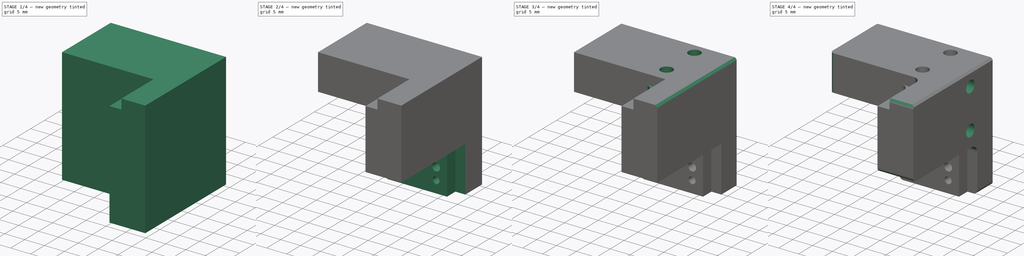
[diagram: build sequence overview — one tinted view per stage of 4, left to right]
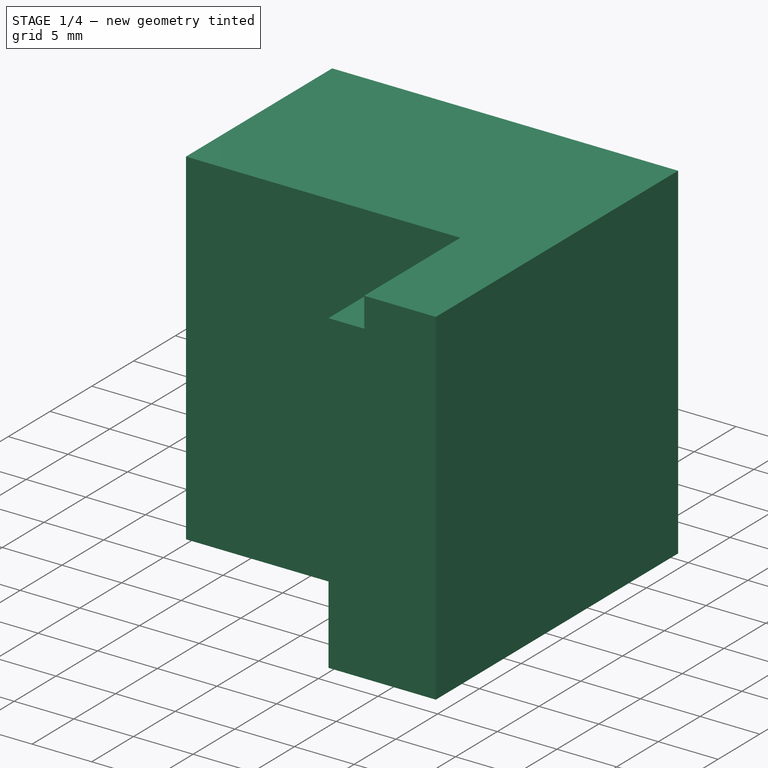
[diagram: stage 1 of 4 — iso view after this stage's code; geometry added in this stage tinted green]
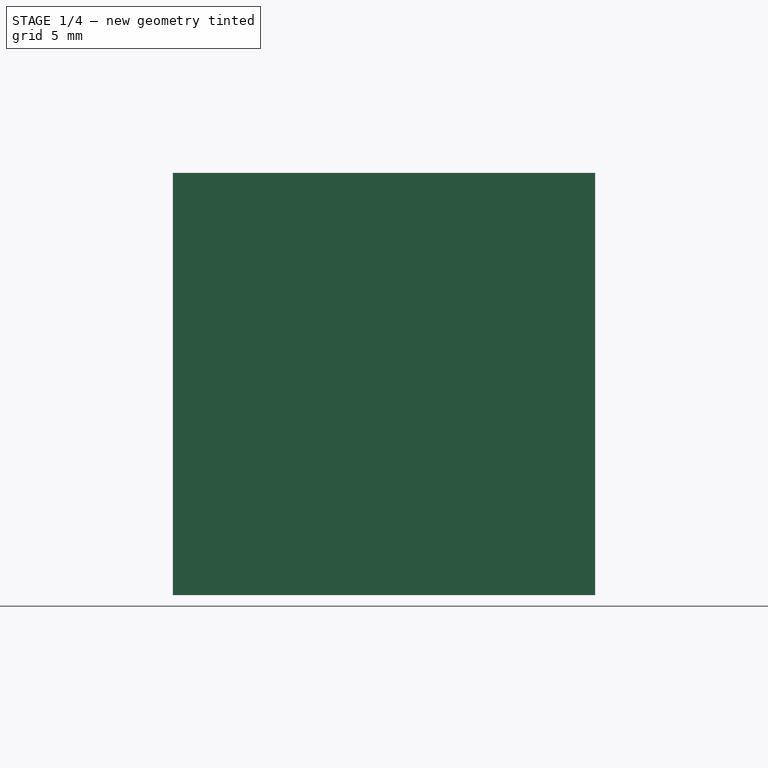
[diagram: stage 1 of 4 — front view after this stage's code; geometry added in this stage tinted green]
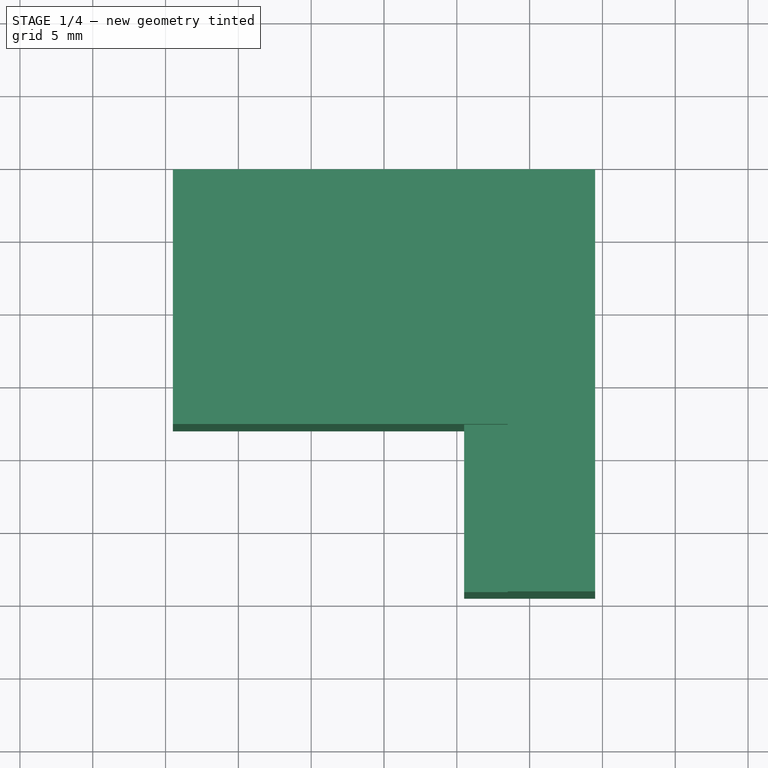
[diagram: stage 1 of 4 — top view after this stage's code; geometry added in this stage tinted green]
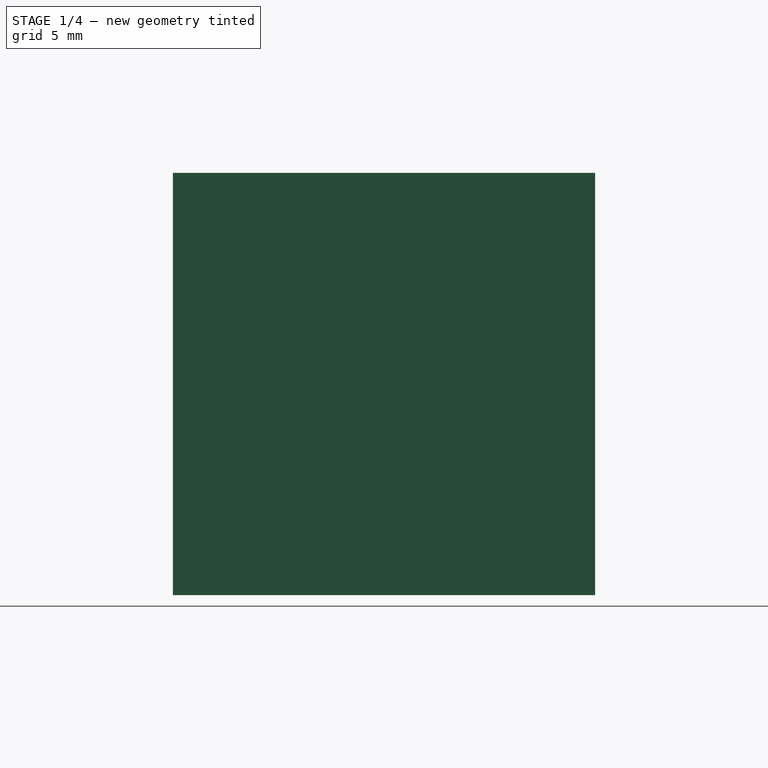
[diagram: stage 1 of 4 — right view after this stage's code; geometry added in this stage tinted green]
FCSTD DOCUMENT  (FreeCAD 1.2R45225 (Git))
Label: EndEffector
License: All rights reserved
LicenseURL: https://en.wikipedia.org/wiki/All_rights_reserved
objects: Sketcher::SketchObject×5, PartDesign::Pocket×4, PartDesign::Fillet×3, Part::DatumPoint×3, Measure::MeasurePosition×3, PartDesign::PolarPattern×2, PartDesign::Chamfer×2, App::Point×1, PartDesign::Pad×1, Part::DatumLine×1, PartDesign::Body×1, App::DocumentObjectGroup×1
note: 45 computed .brp shape members not serialized (recipe doc carries the construction recipe); baked Part::Feature solids carry a one-line shape summary decoded from their .brp

FEATURE [App::Point] Origin001
  Role = Origin
FEATURE [Sketcher::SketchObject] Sketch
  ArcFitTolerance = 1e-06
  AttachmentSupport = -> [XY_Plane]
  ExternalTypes = [0]
  FullyConstrained = true
  MakeInternals = false
  MapMode = 5
  sketch-geometry (5):
    g0: LineSegment StartX=-14.5 StartY=14.5 StartZ=0 EndX=-14.5 EndY=-14.5 EndZ=0
    g1: LineSegment StartX=-14.5 StartY=-14.5 StartZ=0 EndX=14.5 EndY=-14.5 EndZ=0
    g2: LineSegment StartX=14.5 StartY=-14.5 StartZ=0 EndX=14.5 EndY=14.5 EndZ=0
    g3: LineSegment StartX=14.5 StartY=14.5 StartZ=0 EndX=-14.5 EndY=14.5 EndZ=0
    g4: GeomPoint [constr] X=0 Y=0 Z=0
  constraints (12):
    c: Coincident(g0,g1)
    c: Coincident(g1,g2)
    c: Coincident(g2,g3)
    c: Coincident(g3,g0)
    c: Vertical(g0)
    c: Vertical(g2)
    c: Horizontal(g1)
    c: Horizontal(g3)
    c: Symmetric(g2,g0,g4)
    c: Coincident(g4,g-1)
    c: DistanceY(g2,g2) = 29
    c: DistanceX(g1,g1) = 29
FEATURE [PartDesign::Pad] Pad
  Direction = (0,0,1)
  Length = 29
  Length2 = 10
  Profile = -> Sketch
  ReferenceAxis = -> Sketch [N_Axis]
  Refine = true
  SideType = 2
  Suppressed = false
  Type = 0
  Type2 = 0
FEATURE [Part::DatumLine] DatumLine
  AttacherType = Attacher::AttachEngineLine
  AttachmentSupport = -> [Pad]
  MapMode = 29
  Placement = pos=(3.6e-15,3.6e-15,3.6e-15) rot=(0.187053,0.451587,0.872399;2.44807rad)
FEATURE [Sketcher::SketchObject] Sketch002
  ArcFitTolerance = 1e-06
  AttachmentSupport = -> [Pad]
  ExternalTypes = [0,0]
  FullyConstrained = true
  MakeInternals = false
  MapMode = 5
  Placement = pos=(0,-14.5,0) rot=(1,0,0;1.5708rad)
  sketch-geometry (5):
    g0: LineSegment StartX=-24.5 StartY=25 StartZ=0 EndX=-24.5 EndY=-25 EndZ=0
    g1: LineSegment StartX=-24.5 StartY=-25 StartZ=0 EndX=5.5 EndY=-25 EndZ=0
    g2: LineSegment StartX=5.5 StartY=-25 StartZ=0 EndX=5.5 EndY=25 EndZ=0
    g3: LineSegment StartX=5.5 StartY=25 StartZ=0 EndX=-24.5 EndY=25 EndZ=0
    g4: GeomPoint [constr] X=-9.5 Y=0 Z=0
  constraints (13):
    c: Coincident(g0,g1)
    c: Coincident(g1,g2)
    c: Coincident(g2,g3)
    c: Coincident(g3,g0)
    c: Vertical(g0)
    c: Vertical(g2)
    c: Horizontal(g1)
    c: Horizontal(g3)
    c: Symmetric(g2,g0,g4)
    c: PointOnObject(g4,g-1)
    c: DistanceX(g3,g3) = 30
    c: DistanceY(g0,g0) = 50
    c: Distance(g2,g-2) = 5.5
FEATURE [PartDesign::Pocket] Pocket001
  BaseFeature = -> Pad
  Direction = (0,1,0)
  Length = 11.5
  Length2 = 5
  Profile = -> Sketch002
  ReferenceAxis = -> Sketch002 [N_Axis]
  Refine = true
  SideType = 0
  Suppressed = false
  Type = 0
  Type2 = 0
FEATURE [Sketcher::SketchObject] Sketch004
  ArcFitTolerance = 1e-06
  AttachmentSupport = -> [Pocket001]
  ExternalGeometry = -> [Pocket001]
  ExternalTypes = [0,0]
  FullyConstrained = true
  MakeInternals = false
  MapMode = 5
  Placement = pos=(5.5,0,0) rot=(0.57735,-0.57735,-0.57735;2.0944rad)
  sketch-geometry (4):
    g0: LineSegment StartX=14.5 StartY=14.5 StartZ=0 EndX=3 EndY=14.5 EndZ=0
    g1: LineSegment StartX=3 StartY=14.5 StartZ=0 EndX=3 EndY=12 EndZ=0
    g2: LineSegment StartX=3 StartY=12 StartZ=0 EndX=14.5 EndY=12 EndZ=0
    g3: LineSegment StartX=14.5 StartY=12 StartZ=0 EndX=14.5 EndY=14.5 EndZ=0
  constraints (11):
    c: Coincident(g0,g1)
    c: Coincident(g1,g2)
    c: Coincident(g2,g3)
    c: Coincident(g3,g0)
    c: Horizontal(g0)
    c: Horizontal(g2)
    c: Vertical(g1)
    c: Vertical(g3)
    c: Coincident(g0,g-4)
    c: PointOnObject(g1,g-3)
    c: DistanceY(g3,g3) = 2.5
FEATURE [PartDesign::Pocket] Pocket
  BaseFeature = -> Pocket001
  Direction = (1,0,0)
  Length = 3
  Length2 = 5
  Profile = -> Sketch004
  ReferenceAxis = -> Sketch004 [N_Axis]
  Refine = true
  SideType = 0
  Suppressed = false
  Type = 0
  Type2 = 0
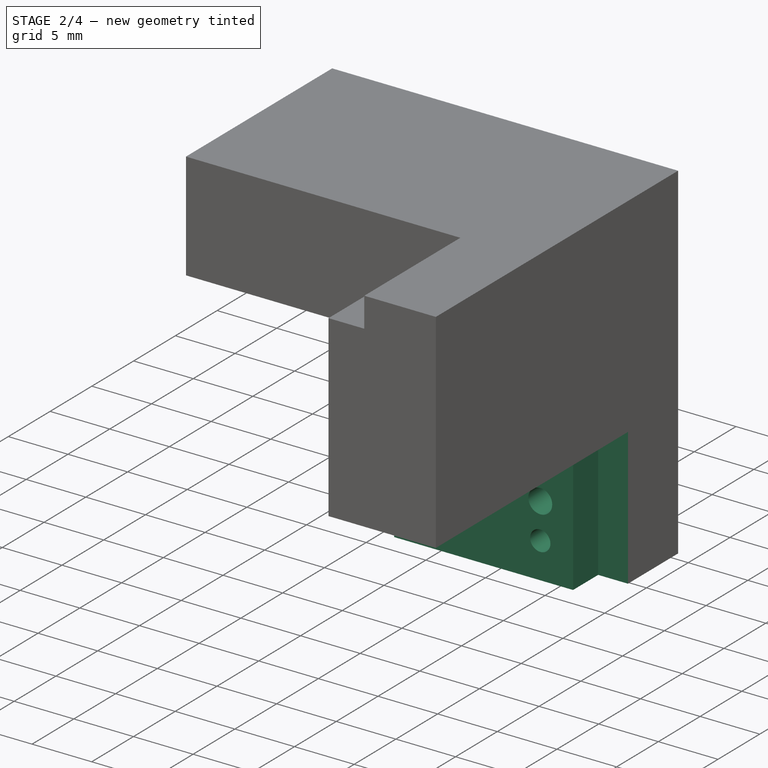
[diagram: stage 2 of 4 — iso view after this stage's code; geometry added in this stage tinted green]
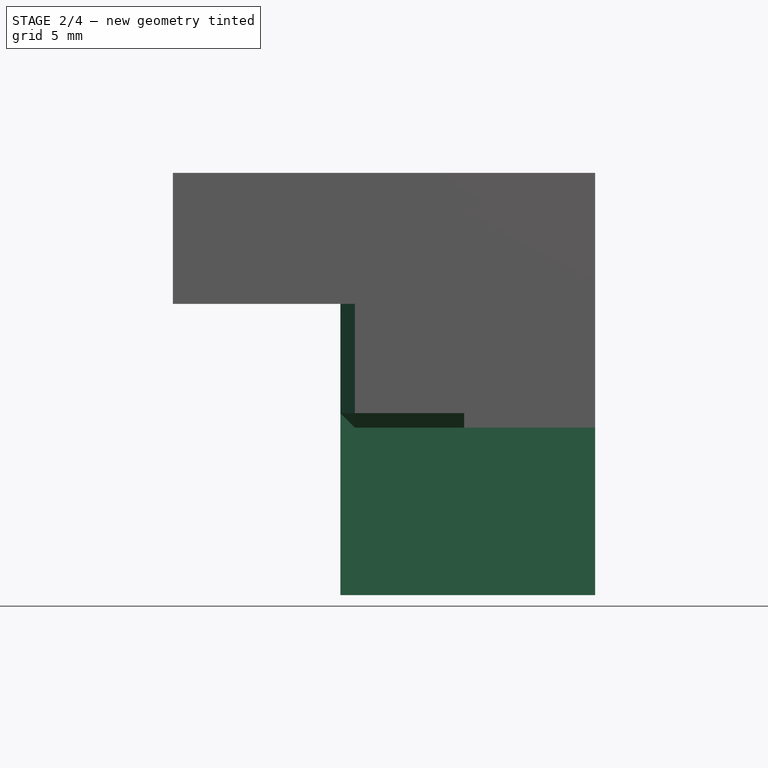
[diagram: stage 2 of 4 — front view after this stage's code; geometry added in this stage tinted green]
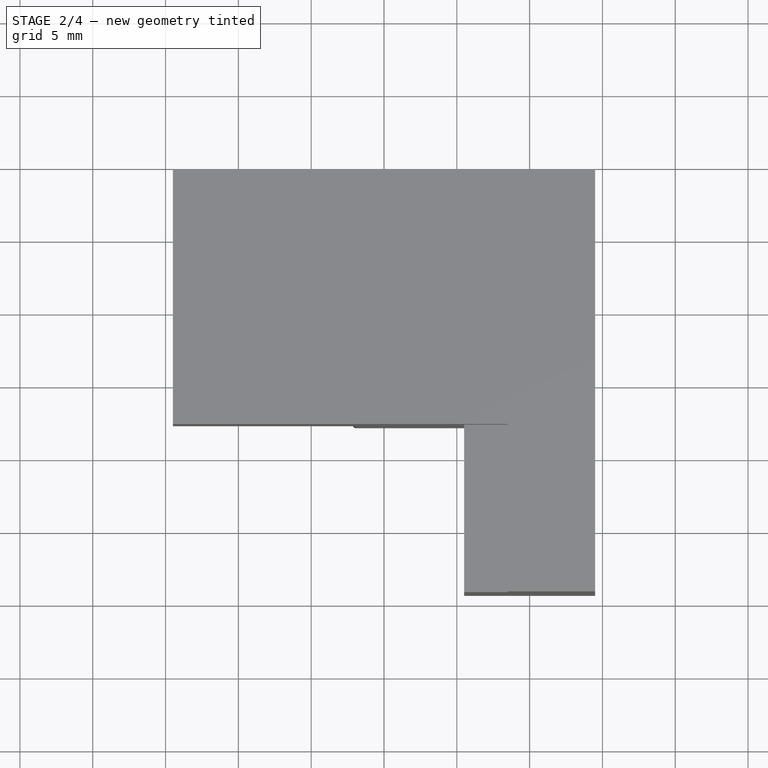
[diagram: stage 2 of 4 — top view after this stage's code; geometry added in this stage tinted green]
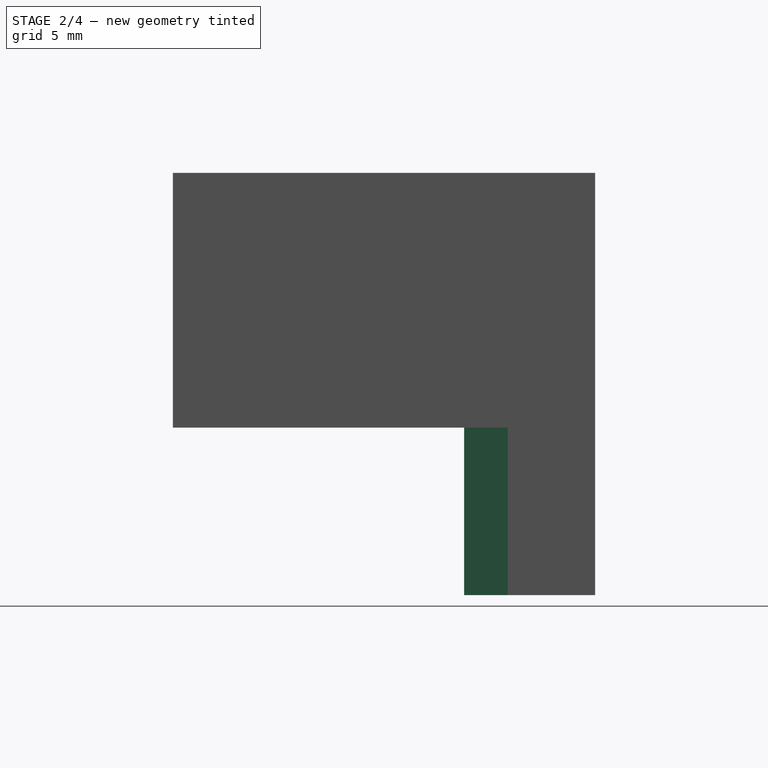
[diagram: stage 2 of 4 — right view after this stage's code; geometry added in this stage tinted green]
FEATURE [Sketcher::SketchObject] Sketch005
  ArcFitTolerance = 1e-06
  AttachmentSupport = -> [Pocket]
  ExternalTypes = [0]
  FullyConstrained = true
  MakeInternals = false
  MapMode = 5
  Placement = pos=(5.5,0,0) rot=(0.57735,-0.57735,-0.57735;2.0944rad)
  sketch-geometry (6):
    g0: Circle CenterX=11.5 CenterY=9.25 CenterZ=0 NormalX=0 NormalY=0 NormalZ=1 AngleXU=0 Radius=0.85
    g1: Circle CenterX=8.5 CenterY=9.25 CenterZ=0 NormalX=0 NormalY=0 NormalZ=1 AngleXU=0 Radius=1
    g2: Circle CenterX=11.5 CenterY=-0.25 CenterZ=0 NormalX=0 NormalY=0 NormalZ=1 AngleXU=0 Radius=0.85
    g3: Circle CenterX=8.5 CenterY=-0.25 CenterZ=0 NormalX=0 NormalY=0 NormalZ=1 AngleXU=0 Radius=1
    g4: LineSegment [constr] StartX=11.5 StartY=9.25 StartZ=0 EndX=11.5 EndY=-0.25 EndZ=0
    g5: GeomPoint [constr] X=11.5 Y=4.5 Z=0
  constraints (15):
    c: Diameter(g0) = 1.7
    c: Equal(g2,g0)
    c: DistanceY(g2,g0) = 9.5
    c: Horizontal(g1,g0)
    c: Vertical(g1,g3)
    c: Horizontal(g3,g2)
    c: Equal(g3,g1)
    c: Diameter(g1) = 2
    c: DistanceX(g1,g0) = 3
    c: Vertical(g2,g0)
    c: DistanceX(g-1,g2) = 11.5
    c: Coincident(g4,g0)
    c: Coincident(g4,g2)
    c: Symmetric(g4,g4,g5)
    c: DistanceY(g-1,g5) = 4.5
FEATURE [PartDesign::Pocket] Pocket003
  BaseFeature = -> Pocket
  Direction = (1,0,0)
  Length = 6.5
  Length2 = 5
  Profile = -> Sketch005
  ReferenceAxis = -> Sketch005 [N_Axis]
  Refine = true
  SideType = 0
  Suppressed = false
  Type = 0
  Type2 = 0
FEATURE [PartDesign::PolarPattern] PolarPattern
  Angle = 360
  Axis = -> DatumLine
  BaseFeature = -> Pocket003
  Mode = 0
  Occurrences = 3
  Offset = 120
  Originals = -> [Pocket001,Pocket,Pocket003]
  Refine = true
  SpacingPattern = [0]
  Spacings = [-1,-1]
  Suppressed = false
  TransformMode = 0
FEATURE [PartDesign::Chamfer] Chamfer
  Angle = 45
  Base = -> PolarPattern [Edge11,Edge84,Edge10]
  BaseFeature = -> PolarPattern
  ChamferType = 0
  FlipDirection = false
  Refine = true
  Size = 1
  Size2 = 1
  SupportTransform = false
  Suppressed = false
  UseAllEdges = false
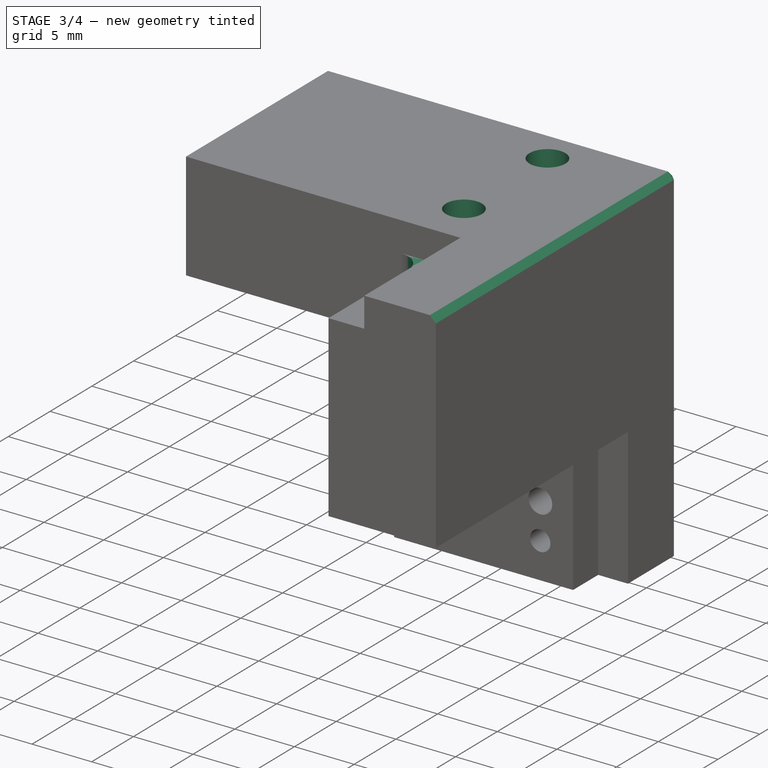
[diagram: stage 3 of 4 — iso view after this stage's code; geometry added in this stage tinted green]
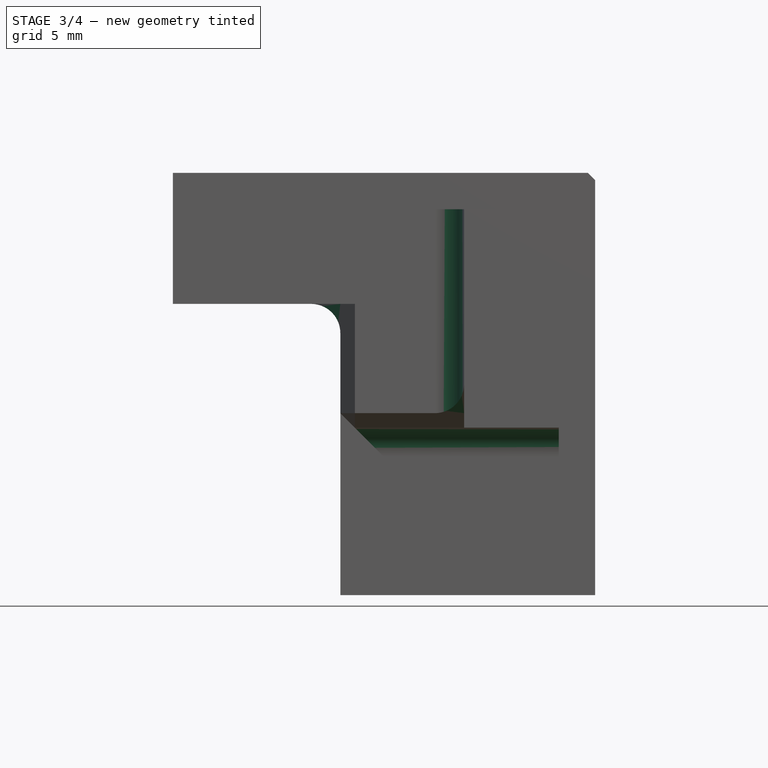
[diagram: stage 3 of 4 — front view after this stage's code; geometry added in this stage tinted green]
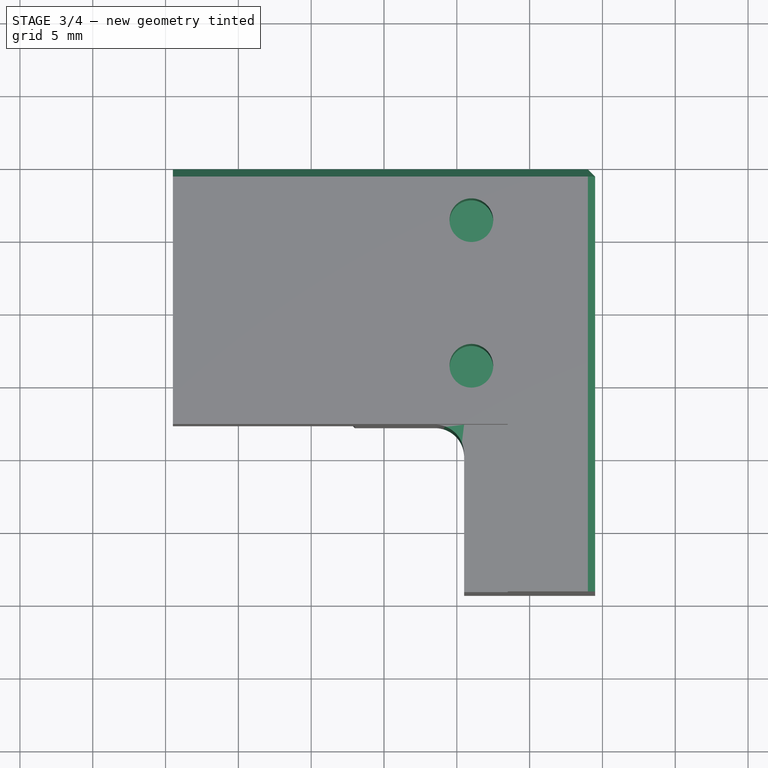
[diagram: stage 3 of 4 — top view after this stage's code; geometry added in this stage tinted green]
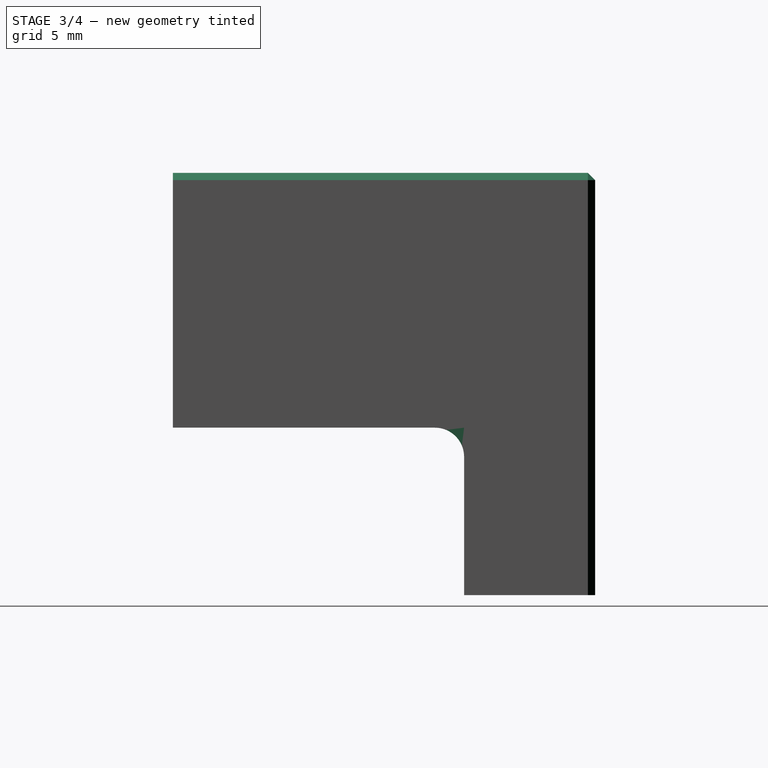
[diagram: stage 3 of 4 — right view after this stage's code; geometry added in this stage tinted green]
FEATURE [PartDesign::Fillet] Fillet
  Base = -> Chamfer [Edge28,Edge1,Edge42]
  BaseFeature = -> Chamfer
  Radius = 2
  Refine = true
  SupportTransform = false
  Suppressed = false
  UseAllEdges = false
FEATURE [PartDesign::Chamfer] Chamfer001
  Angle = 45
  Base = -> Fillet [Edge41,Edge79,Edge39]
  BaseFeature = -> Fillet
  ChamferType = 0
  FlipDirection = false
  Refine = true
  Size = 0.5
  Size2 = 1
  SupportTransform = false
  Suppressed = false
  UseAllEdges = false
FEATURE [Sketcher::SketchObject] Sketch003
  ArcFitTolerance = 1e-06
  AttachmentSupport = -> [Chamfer001]
  ExternalTypes = [0]
  FullyConstrained = true
  MakeInternals = false
  MapMode = 5
  Placement = pos=(0,0,14.5) rot=(0,0,1;0rad)
  sketch-geometry (3):
    g0: Circle CenterX=6 CenterY=11 CenterZ=0 NormalX=0 NormalY=0 NormalZ=1 AngleXU=0 Radius=1.5
    g1: Circle CenterX=6 CenterY=1 CenterZ=0 NormalX=0 NormalY=0 NormalZ=1 AngleXU=0 Radius=1.5
    g2: LineSegment [constr] StartX=6 StartY=11 StartZ=0 EndX=6 EndY=1 EndZ=0
  constraints (8):
    c: Diameter(g0) = 3
    c: Vertical(g2)
    c: Coincident(g2,g0)
    c: Coincident(g1,g2)
    c: DistanceY(g-1,g0) = 11
    c: DistanceY(g2,g2) = 10
    c: Distance(g-2,g2) = 6
    c: Equal(g1,g0)
FEATURE [PartDesign::Pocket] Pocket002  label="AttachmentHoles"
  BaseFeature = -> Chamfer001
  Direction = (0,0,-1)
  Length = 8
  Length2 = 5
  Profile = -> Sketch003
  ReferenceAxis = -> Sketch003 [N_Axis]
  Refine = true
  SideType = 0
  Suppressed = false
  Type = 0
  Type2 = 0
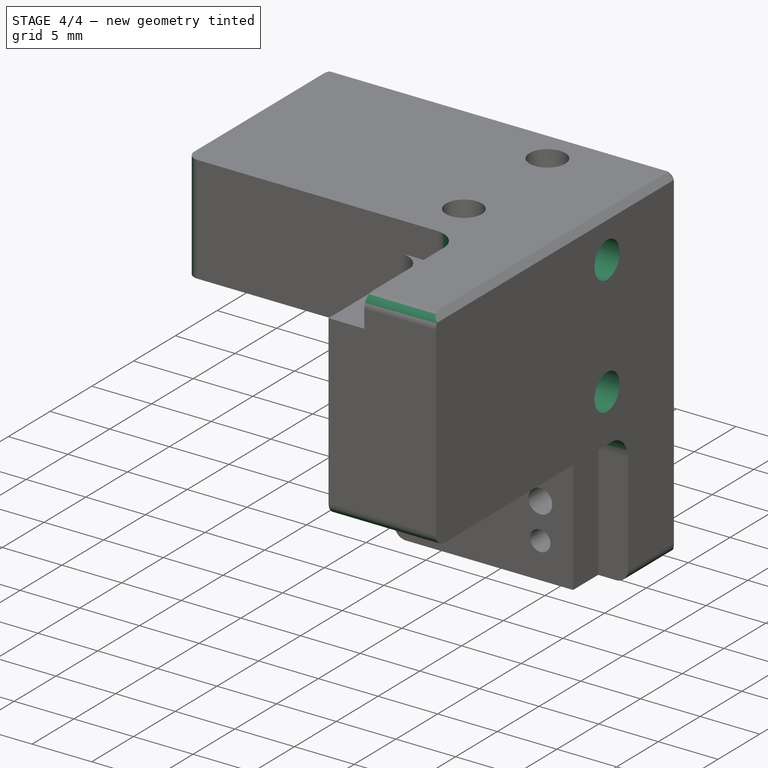
[diagram: stage 4 of 4 — iso view after this stage's code; geometry added in this stage tinted green]
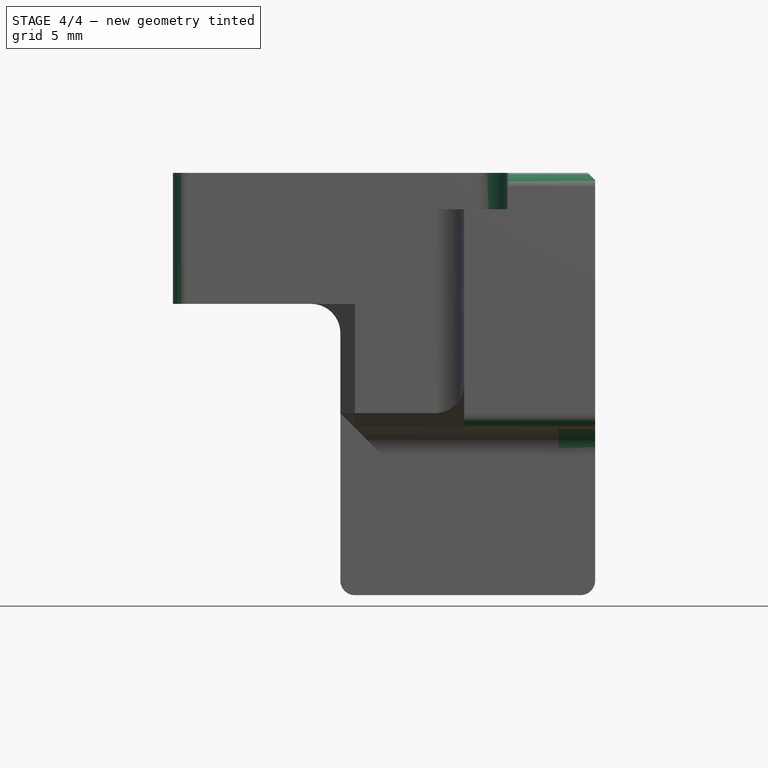
[diagram: stage 4 of 4 — front view after this stage's code; geometry added in this stage tinted green]
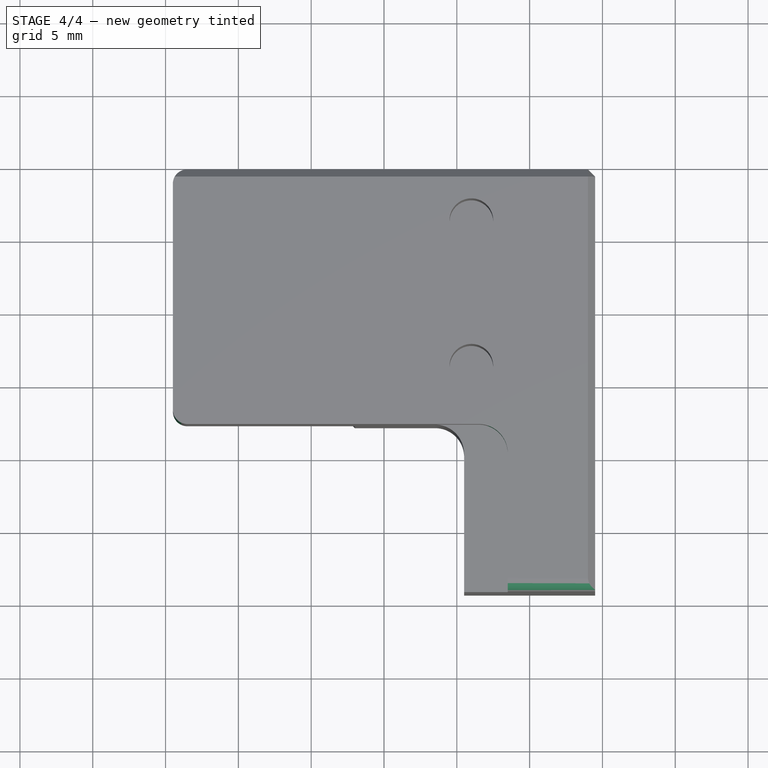
[diagram: stage 4 of 4 — top view after this stage's code; geometry added in this stage tinted green]
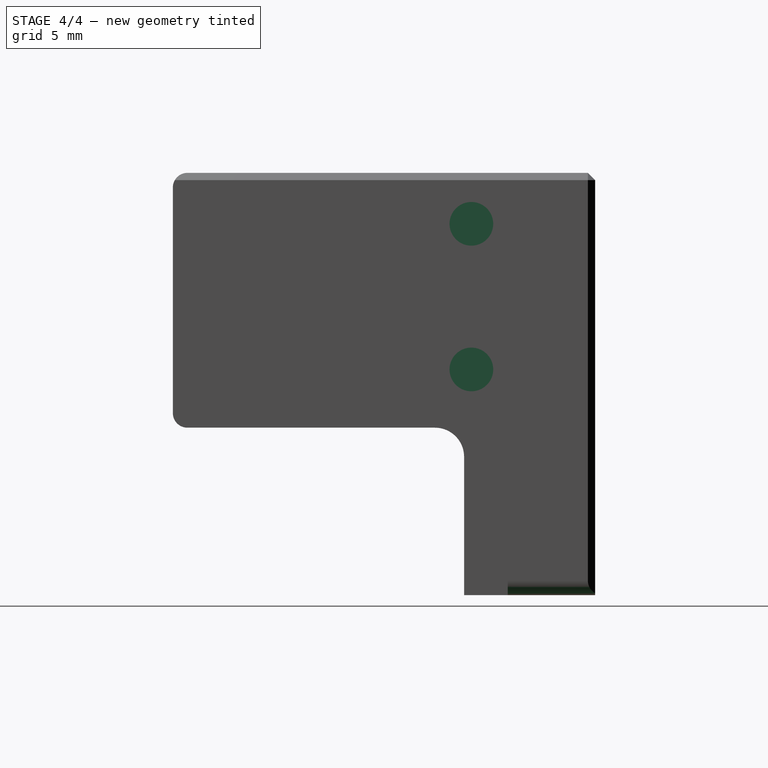
[diagram: stage 4 of 4 — right view after this stage's code; geometry added in this stage tinted green]
FEATURE [PartDesign::PolarPattern] PolarPattern001
  Angle = 360
  Axis = -> DatumLine
  BaseFeature = -> Pocket002
  Mode = 0
  Occurrences = 3
  Offset = 120
  Originals = -> [Pocket002]
  Refine = true
  SpacingPattern = [0]
  Spacings = [-1,-1]
  Suppressed = false
  TransformMode = 0
FEATURE [PartDesign::Fillet] Fillet001
  Base = -> PolarPattern001 [Edge4,Edge3,Edge70,Edge71,Edge46,Edge8]
  BaseFeature = -> PolarPattern001
  Radius = 1
  Refine = true
  SupportTransform = false
  Suppressed = false
  UseAllEdges = false
FEATURE [PartDesign::Fillet] Fillet002
  Base = -> Fillet001 [Edge45,Edge22,Edge123]
  BaseFeature = -> Fillet001
  Radius = 2
  Refine = true
  SupportTransform = false
  Suppressed = false
  UseAllEdges = false
FEATURE [Part::DatumPoint] DatumPoint  label="EE_AtachmentPoint0"
  AttacherType = Attacher::AttachEnginePoint
  Placement = pos=(3.54,-11.5,4.5) rot=(0,0,1;0rad)
FEATURE [Part::DatumPoint] DatumPoint001  label="EE_AtachmentPoint1"
  AttacherType = Attacher::AttachEnginePoint
  Placement = pos=(4.5,3.54,-11.5) rot=(0,0,1;0rad)
FEATURE [Part::DatumPoint] DatumPoint002  label="EE_AtachmentPoint2"
  AttacherType = Attacher::AttachEnginePoint
  Placement = pos=(-11.5,4.5,3.54) rot=(0,0,1;0rad)
FEATURE [PartDesign::Body] Body  label="Endeffector"
  AllowCompound = false
  Group = -> [Sketch,Pad,DatumLine,Sketch002,Pocket001,Sketch004,Pocket,Sketch005,Pocket003,PolarPattern,Chamfer,Fillet,Chamfer001,Sketch003,Pocket002,PolarPattern001,Fillet001,Fillet002,DatumPoint,DatumPoint001,DatumPoint002]
  Origin = -> Origin
  Tip = -> Fillet002
FEATURE [Measure::MeasurePosition] Position  label="Position: X: 3.54 mm
Y: -11.50 mm
Z: 4.50 mm"
  Element = -> Body [DatumPoint.]
  Position = (3.54,-11.5,4.5)
FEATURE [Measure::MeasurePosition] Position001  label="Position001: X: 4.50 mm
Y: 3.54 mm
Z: -11.50 mm"
  Element = -> Body [DatumPoint001.]
  Position = (4.5,3.54,-11.5)
FEATURE [Measure::MeasurePosition] Position002  label="Position002: X: -11.50 mm
Y: 4.50 mm
Z: 3.54 mm"
  Element = -> Body [DatumPoint002.]
  Position = (-11.5,4.5,3.54)
FEATURE [App::DocumentObjectGroup] Measurements
  Group = -> [Position,Position001,Position002]
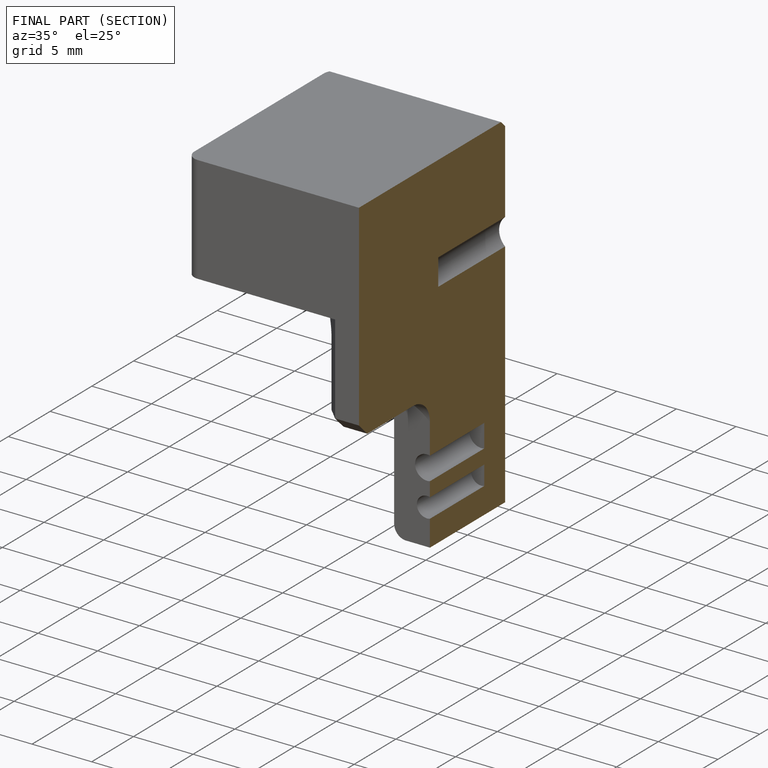
[diagram: finished part — half-section view (interior)]
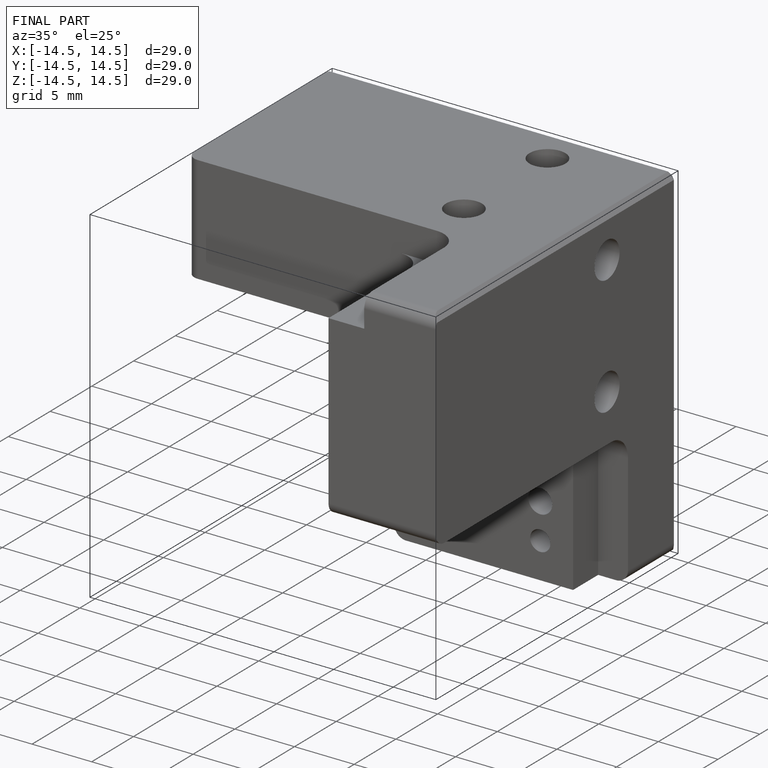
[diagram: finished part — iso view with bounding-box wireframe]
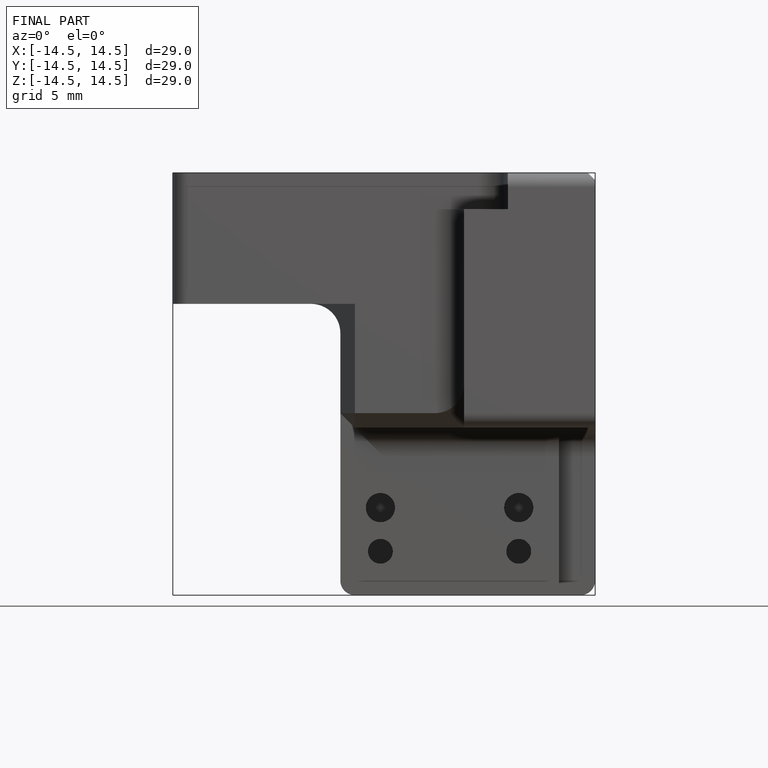
[diagram: finished part — front view with bounding-box wireframe]
